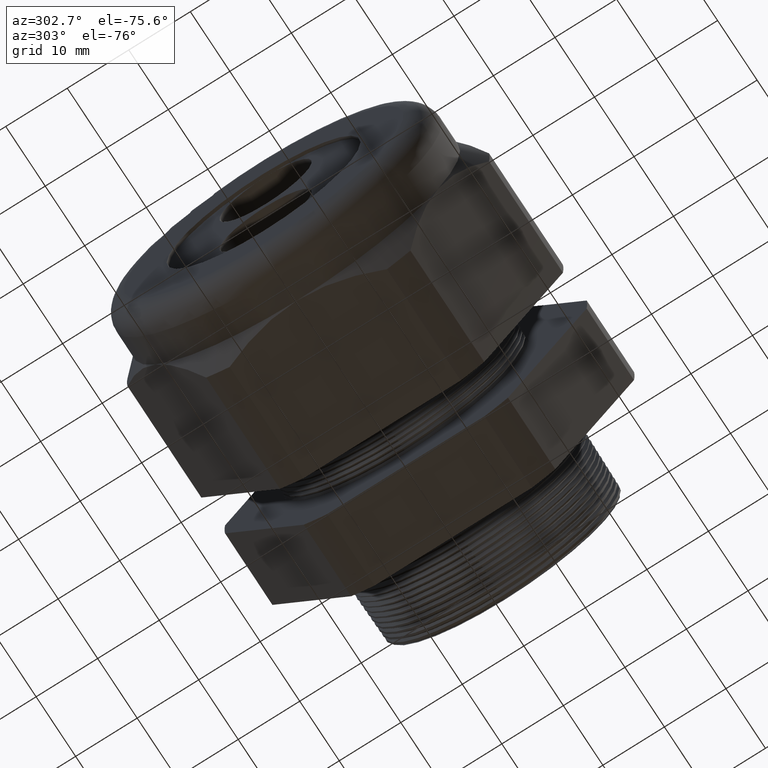
[diagram: clean part render]
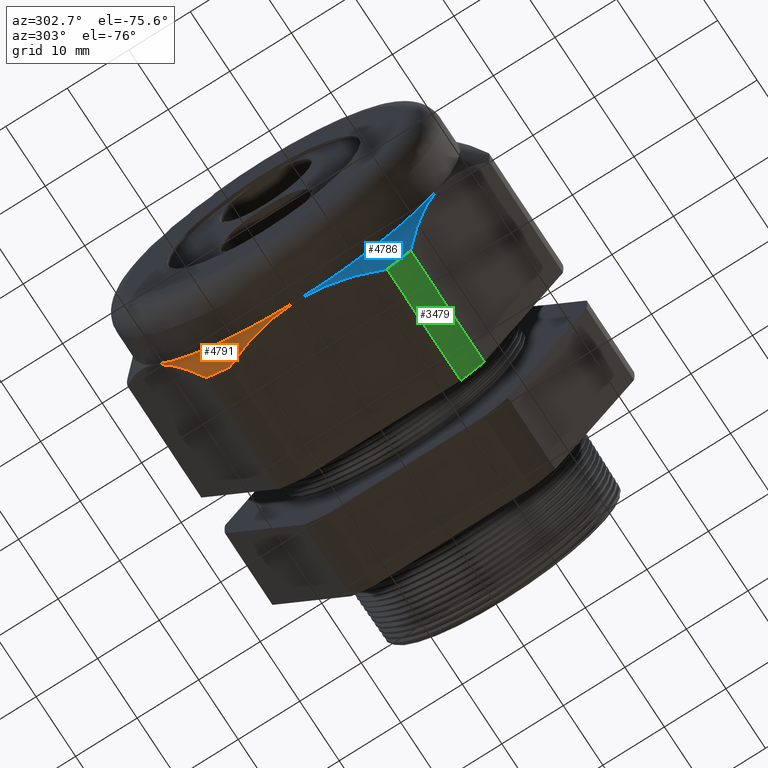
[diagram: same view with three faces highlighted in distinct colors, each labeled with its STEP entity id]
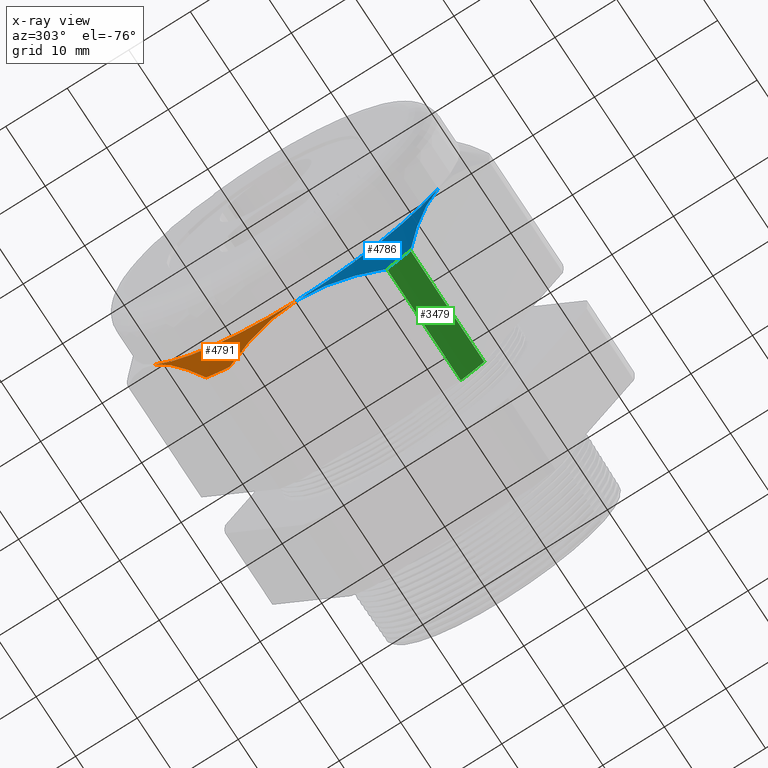
[diagram: x-ray of the same camera — body ghosted, the three highlighted faces saturated]
A machine part, auxiliary view with three faces highlighted in distinct colors.
The next image is the same camera in x-ray (body ghosted, the three faces saturated) — at least one of them is partly hidden behind the body in this view.
Their STEP definitions:

[orange] entity #4791 — the highlighted conical surface has half-angle 45 deg.
#133 = DIRECTION ( 'NONE',  ( 0.0000000000000000000, 0.0000000000000000000, -1.000000000000000000 ) ) ;
#134 = DIRECTION ( 'NONE',  ( 1.000000000000000000, 0.0000000000000000000, 0.0000000000000000000 ) ) ;
#135 = CARTESIAN_POINT ( 'NONE',  ( -1.754342000000000300, 0.0000000000000000000, 0.0000000000000000000 ) ) ;
#136 = AXIS2_PLACEMENT_3D ( 'NONE', #135, #134, #133 ) ;
#137 = CIRCLE ( 'NONE', #136, 1.159950000000000000 ) ;
#138 = CARTESIAN_POINT ( 'NONE',  ( -1.754342000000000300, 0.5034471198646389700, -1.044999999999999900 ) ) ;
#162 = CARTESIAN_POINT ( 'NONE',  ( -1.869292000000000000, 0.9049965469547385200, -0.5224999999999998500 ) ) ;
#163 = CARTESIAN_POINT ( 'NONE',  ( -1.869292000000000200, 0.8941003263552936800, -0.5413728076887161000 ) ) ;
#164 = CARTESIAN_POINT ( 'NONE',  ( -1.868602443834755500, 0.8831044440390646300, -0.5604182345344733700 ) ) ;
#165 = CARTESIAN_POINT ( 'NONE',  ( -1.865863667396530800, 0.8612576128887807800, -0.5982580560711432400 ) ) ;
#166 = CARTESIAN_POINT ( 'NONE',  ( -1.863823402605176300, 0.8504177933294220200, -0.6170331742928314400 ) ) ;
#167 = CARTESIAN_POINT ( 'NONE',  ( -1.855811452808127300, 0.8181339861334944200, -0.6729503686179360000 ) ) ;
#168 = CARTESIAN_POINT ( 'NONE',  ( -1.847948022855568300, 0.7969257234379632000, -0.7096841571468632800 ) ) ;
#169 = CARTESIAN_POINT ( 'NONE',  ( -1.817835050397151700, 0.7341137082222672900, -0.8184777588262393000 ) ) ;
#170 = CARTESIAN_POINT ( 'NONE',  ( -1.789102837835438100, 0.6933177427239282100, -0.8891384438131889600 ) ) ;
#171 = CARTESIAN_POINT ( 'NONE',  ( -1.754342000000000300, 0.6532729870224188700, -0.9584979952648866600 ) ) ;
#175 = B_SPLINE_CURVE_WITH_KNOTS ( 'NONE', 3,
 ( #171, #170, #169, #168, #167, #166, #165, #164, #163, #162 ),
 .UNSPECIFIED., .F., .F.,
 ( 4, 2, 2, 2, 4 ),
 ( 2.483246824808978000E-007, 0.006562468983848355300, 0.009843579313431298100, 0.01148413447822276900, 0.01312468964301424100 ),
 .UNSPECIFIED. ) ;
#237 = CARTESIAN_POINT ( 'NONE',  ( -1.754342000000000300, 0.6532729870224188700, -0.9584979952648866600 ) ) ;
#271 = CARTESIAN_POINT ( 'NONE',  ( -1.865889267300423500, 0.08713363206265267700, -1.045000000000000200 ) ) ;
#272 = CARTESIAN_POINT ( 'NONE',  ( -1.868601348862169100, 0.04373691554683246900, -1.044999999999999900 ) ) ;
#273 = CARTESIAN_POINT ( 'NONE',  ( -1.869292000000000000, 0.02182873446798836200, -1.044999999999999700 ) ) ;
#274 = CARTESIAN_POINT ( 'NONE',  ( -1.869292000000000000, 0.0000000000000000000, -1.044999999999999900 ) ) ;
#276 = B_SPLINE_CURVE_WITH_KNOTS ( 'NONE', 3,
 ( #274, #273, #272, #271, #327, #326, #325, #324, #323, #322, #321, #320, #319, #318 ),
 .UNSPECIFIED., .F., .F.,
 ( 4, 2, 2, 2, 2, 2, 4 ),
 ( 0.03087839258829223200, 0.03251280974861876800, 0.03414722690894530400, 0.03741606122959838200, 0.04068489555025145400, 0.04231931271057799000, 0.04395372987090452600 ),
 .UNSPECIFIED. ) ;
#318 = CARTESIAN_POINT ( 'NONE',  ( -1.754342000000000300, 0.5034471198646389700, -1.044999999999999900 ) ) ;
#319 = CARTESIAN_POINT ( 'NONE',  ( -1.762942910033211900, 0.4836304892804660900, -1.045000000000000200 ) ) ;
#320 = CARTESIAN_POINT ( 'NONE',  ( -1.771216119577155400, 0.4636207977166991200, -1.045000000000000400 ) ) ;
#321 = CARTESIAN_POINT ( 'NONE',  ( -1.787018621072150100, 0.4231631440832459000, -1.044999999999999700 ) ) ;
#322 = CARTESIAN_POINT ( 'NONE',  ( -1.794564483841140800, 0.4026641939678180000, -1.045000000000000200 ) ) ;
#323 = CARTESIAN_POINT ( 'NONE',  ( -1.815769846189895200, 0.3409118552550475200, -1.044999999999999900 ) ) ;
#324 = CARTESIAN_POINT ( 'NONE',  ( -1.828018536546964100, 0.2993753196147930800, -1.044999999999999900 ) ) ;
#325 = CARTESIAN_POINT ( 'NONE',  ( -1.848093749831173400, 0.2154396742832506400, -1.044999999999999900 ) ) ;
#326 = CARTESIAN_POINT ( 'NONE',  ( -1.855917652805893600, 0.1730400535522952100, -1.044999999999999700 ) ) ;
#327 = CARTESIAN_POINT ( 'NONE',  ( -1.863869075271275700, 0.1087024430698535800, -1.044999999999999900 ) ) ;
#1543 = CARTESIAN_POINT ( 'NONE',  ( -1.869292000000000000, 0.0000000000000000000, -1.044999999999999900 ) ) ;
#1596 = CARTESIAN_POINT ( 'NONE',  ( -1.869292000000000000, 0.9049965469547385200, -0.5224999999999998500 ) ) ;
#1695 = DIRECTION ( 'NONE',  ( 0.0000000000000000000, 0.0000000000000000000, -1.000000000000000000 ) ) ;
#1696 = DIRECTION ( 'NONE',  ( 1.000000000000000000, 0.0000000000000000000, 0.0000000000000000000 ) ) ;
#1697 = CARTESIAN_POINT ( 'NONE',  ( -1.869292000000000000, 0.0000000000000000000, 0.0000000000000000000 ) ) ;
#1698 = AXIS2_PLACEMENT_3D ( 'NONE', #1697, #1696, #1695 ) ;
#1699 = CIRCLE ( 'NONE', #1698, 1.044999999999999700 ) ;
#2764 = DIRECTION ( 'NONE',  ( 0.0000000000000000000, 0.0000000000000000000, 1.000000000000000000 ) ) ;
#2765 = DIRECTION ( 'NONE',  ( 1.000000000000000000, 0.0000000000000000000, 0.0000000000000000000 ) ) ;
#2766 = AXIS2_PLACEMENT_3D ( 'NONE', #2773, #2765, #2764 ) ;
#2768 = CONICAL_SURFACE ( 'NONE', #2766, 1.045000000000000200, 0.7853981633974501700 ) ;
#2769 = FACE_OUTER_BOUND ( 'NONE', #4792, .T. ) ;
#2773 = CARTESIAN_POINT ( 'NONE',  ( -1.869292000000000000, 0.0000000000000000000, 0.0000000000000000000 ) ) ;
#3406 = VERTEX_POINT ( 'NONE', #138 ) ;
#3408 = EDGE_CURVE ( 'NONE', #3406, #3444, #137, .T. ) ;
#3420 = EDGE_CURVE ( 'NONE', #3444, #4105, #175, .T. ) ;
#3444 = VERTEX_POINT ( 'NONE', #237 ) ;
#3475 = EDGE_CURVE ( 'NONE', #4068, #3406, #276, .T. ) ;
#4068 = VERTEX_POINT ( 'NONE', #1543 ) ;
#4105 = VERTEX_POINT ( 'NONE', #1596 ) ;
#4153 = EDGE_CURVE ( 'NONE', #4068, #4105, #1699, .T. ) ;
#4791 = ADVANCED_FACE ( 'NONE', ( #2769 ), #2768, .T. ) ;
#4792 = EDGE_LOOP ( 'NONE', ( #4793, #4794, #4795, #4796 ) ) ;
#4793 = ORIENTED_EDGE ( 'NONE', *, *, #4153, .T. ) ;
#4794 = ORIENTED_EDGE ( 'NONE', *, *, #3420, .F. ) ;
#4795 = ORIENTED_EDGE ( 'NONE', *, *, #3408, .F. ) ;
#4796 = ORIENTED_EDGE ( 'NONE', *, *, #3475, .F. ) ;

[blue] entity #4786 — the highlighted conical surface has half-angle 45 deg.
#176 = CARTESIAN_POINT ( 'NONE',  ( -1.754342000000000300, -0.5034471198646389700, -1.044999999999999900 ) ) ;
#249 = CARTESIAN_POINT ( 'NONE',  ( -1.869292000000000000, -0.9049965469547380800, -0.5225000000000000800 ) ) ;
#277 = CARTESIAN_POINT ( 'NONE',  ( -1.869292000000000000, 0.0000000000000000000, -1.044999999999999900 ) ) ;
#278 = CARTESIAN_POINT ( 'NONE',  ( -1.869292000000000200, -0.08745202795108886200, -1.044999999999999700 ) ) ;
#279 = CARTESIAN_POINT ( 'NONE',  ( -1.858213035920961900, -0.1730359448115060800, -1.044999999999999700 ) ) ;
#280 = CARTESIAN_POINT ( 'NONE',  ( -1.828087416907578500, -0.2991342696643443700, -1.044999999999999900 ) ) ;
#281 = CARTESIAN_POINT ( 'NONE',  ( -1.815810422140071900, -0.3407977905260944900, -1.045000000000000200 ) ) ;
#282 = CARTESIAN_POINT ( 'NONE',  ( -1.787425944234740200, -0.4234483023531728200, -1.044999999999999900 ) ) ;
#283 = CARTESIAN_POINT ( 'NONE',  ( -1.771541667379295000, -0.4638188185209403700, -1.044999999999999700 ) ) ;
#284 = CARTESIAN_POINT ( 'NONE',  ( -1.754342000000000300, -0.5034471198646389700, -1.044999999999999900 ) ) ;
#285 = B_SPLINE_CURVE_WITH_KNOTS ( 'NONE', 3,
 ( #284, #283, #282, #281, #280, #279, #278, #277 ),
 .UNSPECIFIED., .F., .F.,
 ( 4, 2, 2, 4 ),
 ( 0.01778252618355635100, 0.02105649278474032100, 0.02433045938592429500, 0.03087839258829223200 ),
 .UNSPECIFIED. ) ;
#286 = CARTESIAN_POINT ( 'NONE',  ( -1.754342000000000300, -0.6532729870224180900, -0.9584979952648871000 ) ) ;
#287 = CARTESIAN_POINT ( 'NONE',  ( -1.771743928187930100, -0.6733201437198448300, -0.9237753013176495100 ) ) ;
#288 = CARTESIAN_POINT ( 'NONE',  ( -1.787722809093209100, -0.6936676680849163100, -0.8885323553090995800 ) ) ;
#289 = CARTESIAN_POINT ( 'NONE',  ( -1.816049984818948400, -0.7349840752165897100, -0.8169702389708404200 ) ) ;
#290 = CARTESIAN_POINT ( 'NONE',  ( -1.828286401335963200, -0.7557945758470279200, -0.7809253945479772700 ) ) ;
#291 = CARTESIAN_POINT ( 'NONE',  ( -1.858295772310754700, -0.8187555438091956800, -0.6718737991437870900 ) ) ;
#292 = CARTESIAN_POINT ( 'NONE',  ( -1.869292000000000200, -0.8614415502338408400, -0.5979394672440895300 ) ) ;
#293 = CARTESIAN_POINT ( 'NONE',  ( -1.869292000000000000, -0.9049965469547380800, -0.5225000000000000800 ) ) ;
#294 = B_SPLINE_CURVE_WITH_KNOTS ( 'NONE', 3,
 ( #293, #292, #291, #290, #289, #288, #287, #286 ),
 .UNSPECIFIED., .F., .F.,
 ( 4, 2, 2, 4 ),
 ( 0.01312468964301425000, 0.01968241065928899600, 0.02296127116742637700, 0.02624013167556375800 ),
 .UNSPECIFIED. ) ;
#302 = DIRECTION ( 'NONE',  ( 0.0000000000000000000, 0.0000000000000000000, -1.000000000000000000 ) ) ;
#303 = DIRECTION ( 'NONE',  ( 1.000000000000000000, 0.0000000000000000000, 0.0000000000000000000 ) ) ;
#304 = CARTESIAN_POINT ( 'NONE',  ( -1.754342000000000300, 0.0000000000000000000, 0.0000000000000000000 ) ) ;
#305 = AXIS2_PLACEMENT_3D ( 'NONE', #304, #303, #302 ) ;
#306 = CIRCLE ( 'NONE', #305, 1.159950000000000000 ) ;
#308 = CARTESIAN_POINT ( 'NONE',  ( -1.754342000000000300, -0.6532729870224180900, -0.9584979952648871000 ) ) ;
#1543 = CARTESIAN_POINT ( 'NONE',  ( -1.869292000000000000, 0.0000000000000000000, -1.044999999999999900 ) ) ;
#2567 = DIRECTION ( 'NONE',  ( 0.0000000000000000000, 0.0000000000000000000, -1.000000000000000000 ) ) ;
#2568 = DIRECTION ( 'NONE',  ( 1.000000000000000000, 0.0000000000000000000, 0.0000000000000000000 ) ) ;
#2569 = CARTESIAN_POINT ( 'NONE',  ( -1.869292000000000000, 0.0000000000000000000, 0.0000000000000000000 ) ) ;
#2570 = AXIS2_PLACEMENT_3D ( 'NONE', #2569, #2568, #2567 ) ;
#2575 = CIRCLE ( 'NONE', #2570, 1.044999999999999700 ) ;
#2770 = DIRECTION ( 'NONE',  ( 0.0000000000000000000, 0.0000000000000000000, 1.000000000000000000 ) ) ;
#2771 = DIRECTION ( 'NONE',  ( 1.000000000000000000, 0.0000000000000000000, 0.0000000000000000000 ) ) ;
#2772 = AXIS2_PLACEMENT_3D ( 'NONE', #2780, #2771, #2770 ) ;
#2774 = CONICAL_SURFACE ( 'NONE', #2772, 1.045000000000000200, 0.7853981633974501700 ) ;
#2775 = FACE_OUTER_BOUND ( 'NONE', #4809, .T. ) ;
#2780 = CARTESIAN_POINT ( 'NONE',  ( -1.869292000000000000, 0.0000000000000000000, 0.0000000000000000000 ) ) ;
#3417 = VERTEX_POINT ( 'NONE', #176 ) ;
#3469 = VERTEX_POINT ( 'NONE', #249 ) ;
#3471 = EDGE_CURVE ( 'NONE', #3469, #3484, #294, .T. ) ;
#3473 = EDGE_CURVE ( 'NONE', #3417, #4068, #285, .T. ) ;
#3484 = VERTEX_POINT ( 'NONE', #308 ) ;
#3487 = EDGE_CURVE ( 'NONE', #3484, #3417, #306, .T. ) ;
#4068 = VERTEX_POINT ( 'NONE', #1543 ) ;
#4646 = EDGE_CURVE ( 'NONE', #3469, #4068, #2575, .T. ) ;
#4786 = ADVANCED_FACE ( 'NONE', ( #2775 ), #2774, .T. ) ;
#4787 = ORIENTED_EDGE ( 'NONE', *, *, #4646, .T. ) ;
#4788 = ORIENTED_EDGE ( 'NONE', *, *, #3473, .F. ) ;
#4789 = ORIENTED_EDGE ( 'NONE', *, *, #3487, .F. ) ;
#4790 = ORIENTED_EDGE ( 'NONE', *, *, #3471, .F. ) ;
#4809 = EDGE_LOOP ( 'NONE', ( #4787, #4788, #4789, #4790 ) ) ;

[green] entity #3479 — the highlighted cylindrical surface (partial cylindrical patch) has radius 29.4627 mm, axis along (-1, 0, 0).
#176 = CARTESIAN_POINT ( 'NONE',  ( -1.754342000000000300, -0.5034471198646389700, -1.044999999999999900 ) ) ;
#177 = CARTESIAN_POINT ( 'NONE',  ( -1.018802799999999800, -0.5034471198646389700, -1.044999999999999900 ) ) ;
#178 = DIRECTION ( 'NONE',  ( -1.000000000000000000, 0.0000000000000000000, 0.0000000000000000000 ) ) ;
#179 = VECTOR ( 'NONE', #178, 39.37007874015748100 ) ;
#180 = CARTESIAN_POINT ( 'NONE',  ( 0.2000000000000000400, -0.5034471198646389700, -1.044999999999999900 ) ) ;
#181 = LINE ( 'NONE', #180, #179 ) ;
#263 = DIRECTION ( 'NONE',  ( 0.0000000000000000000, 0.0000000000000000000, -1.000000000000000000 ) ) ;
#264 = DIRECTION ( 'NONE',  ( 1.000000000000000000, 0.0000000000000000000, 0.0000000000000000000 ) ) ;
#265 = CARTESIAN_POINT ( 'NONE',  ( -1.018802799999999800, 0.0000000000000000000, 0.0000000000000000000 ) ) ;
#266 = AXIS2_PLACEMENT_3D ( 'NONE', #265, #264, #263 ) ;
#267 = CIRCLE ( 'NONE', #266, 1.159950000000000000 ) ;
#302 = DIRECTION ( 'NONE',  ( 0.0000000000000000000, 0.0000000000000000000, -1.000000000000000000 ) ) ;
#303 = DIRECTION ( 'NONE',  ( 1.000000000000000000, 0.0000000000000000000, 0.0000000000000000000 ) ) ;
#304 = CARTESIAN_POINT ( 'NONE',  ( -1.754342000000000300, 0.0000000000000000000, 0.0000000000000000000 ) ) ;
#305 = AXIS2_PLACEMENT_3D ( 'NONE', #304, #303, #302 ) ;
#306 = CIRCLE ( 'NONE', #305, 1.159950000000000000 ) ;
#308 = CARTESIAN_POINT ( 'NONE',  ( -1.754342000000000300, -0.6532729870224180900, -0.9584979952648871000 ) ) ;
#309 = CARTESIAN_POINT ( 'NONE',  ( -1.018802799999999800, -0.6532729870224180900, -0.9584979952648871000 ) ) ;
#310 = DIRECTION ( 'NONE',  ( -1.000000000000000000, 0.0000000000000000000, 0.0000000000000000000 ) ) ;
#311 = VECTOR ( 'NONE', #310, 39.37007874015748100 ) ;
#312 = CARTESIAN_POINT ( 'NONE',  ( 0.2000000000000000400, -0.6532729870224180900, -0.9584979952648871000 ) ) ;
#313 = DIRECTION ( 'NONE',  ( 0.0000000000000000000, 0.0000000000000000000, 1.000000000000000000 ) ) ;
#314 = DIRECTION ( 'NONE',  ( -1.000000000000000000, 0.0000000000000000000, 0.0000000000000000000 ) ) ;
#315 = CARTESIAN_POINT ( 'NONE',  ( 0.2000000000000000400, 0.0000000000000000000, 0.0000000000000000000 ) ) ;
#316 = LINE ( 'NONE', #312, #311 ) ;
#317 = AXIS2_PLACEMENT_3D ( 'NONE', #315, #314, #313 ) ;
#328 = CYLINDRICAL_SURFACE ( 'NONE', #317, 1.159950000000000000 ) ;
#329 = FACE_OUTER_BOUND ( 'NONE', #3480, .T. ) ;
#3415 = EDGE_CURVE ( 'NONE', #3416, #3417, #181, .T. ) ;
#3416 = VERTEX_POINT ( 'NONE', #177 ) ;
#3417 = VERTEX_POINT ( 'NONE', #176 ) ;
#3458 = ORIENTED_EDGE ( 'NONE', *, *, #3415, .F. ) ;
#3459 = ORIENTED_EDGE ( 'NONE', *, *, #3460, .F. ) ;
#3460 = EDGE_CURVE ( 'NONE', #3483, #3416, #267, .T. ) ;
#3479 = ADVANCED_FACE ( 'NONE', ( #329 ), #328, .T. ) ;
#3480 = EDGE_LOOP ( 'NONE', ( #3481, #3486, #3458, #3459 ) ) ;
#3481 = ORIENTED_EDGE ( 'NONE', *, *, #3482, .T. ) ;
#3482 = EDGE_CURVE ( 'NONE', #3483, #3484, #316, .T. ) ;
#3483 = VERTEX_POINT ( 'NONE', #309 ) ;
#3484 = VERTEX_POINT ( 'NONE', #308 ) ;
#3486 = ORIENTED_EDGE ( 'NONE', *, *, #3487, .T. ) ;
#3487 = EDGE_CURVE ( 'NONE', #3484, #3417, #306, .T. ) ;